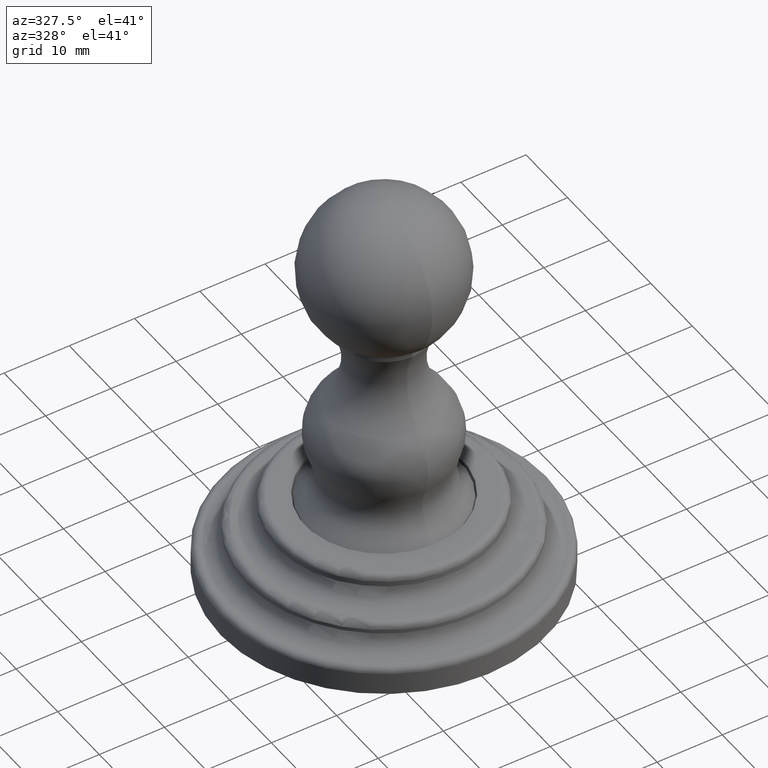
[diagram: clean part render]
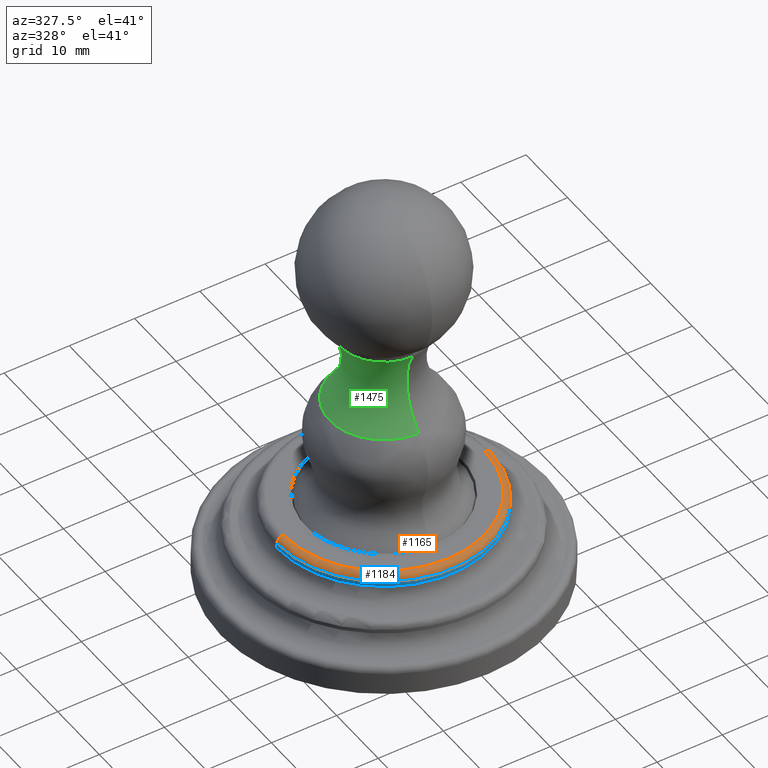
[diagram: same view with three faces highlighted in distinct colors, each labeled with its STEP entity id]
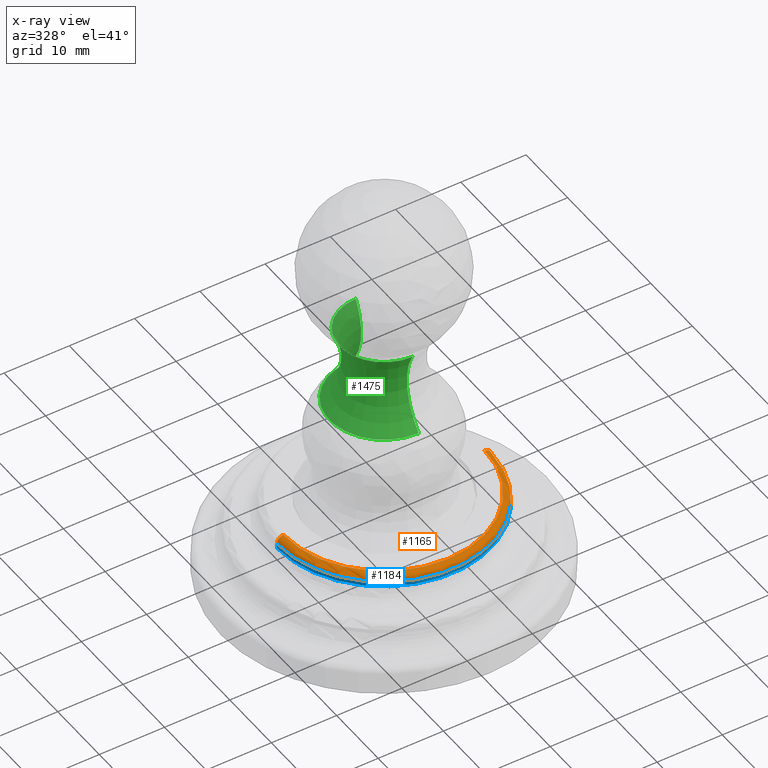
[diagram: x-ray of the same camera — body ghosted, the three highlighted faces saturated]
A machine part, auxiliary view with three faces highlighted in distinct colors.
The next image is the same camera in x-ray (body ghosted, the three faces saturated) — at least one of them is partly hidden behind the body in this view.
Their STEP definitions:

[orange] entity #1165 — the highlighted toroidal blend (fillet) surface has major radius 15.4178 mm and minor (blend) radius 0.9906 mm.
#408=CARTESIAN_POINT('',(6.07E-1,0.E0,4.61E-1));
#409=DIRECTION('',(0.E0,1.E0,0.E0));
#410=DIRECTION('',(0.E0,0.E0,1.E0));
#411=AXIS2_PLACEMENT_3D('',#408,#409,#410);
#416=CARTESIAN_POINT('',(-1.230769033143E-14,0.E0,5.E-1));
#417=DIRECTION('',(0.E0,0.E0,1.E0));
#418=DIRECTION('',(-1.E0,0.E0,0.E0));
#419=AXIS2_PLACEMENT_3D('',#416,#417,#418);
#448=CARTESIAN_POINT('',(-6.07E-1,0.E0,4.61E-1));
#449=DIRECTION('',(0.E0,-1.E0,0.E0));
#450=DIRECTION('',(0.E0,0.E0,1.E0));
#451=AXIS2_PLACEMENT_3D('',#448,#449,#450);
#456=CARTESIAN_POINT('',(-1.230291420891E-14,0.E0,4.61E-1));
#457=DIRECTION('',(0.E0,0.E0,1.E0));
#458=DIRECTION('',(-1.E0,0.E0,0.E0));
#459=AXIS2_PLACEMENT_3D('',#456,#457,#458);
#722=CARTESIAN_POINT('',(-6.07E-1,0.E0,5.E-1));
#723=CARTESIAN_POINT('',(6.07E-1,0.E0,5.E-1));
#724=VERTEX_POINT('',#722);
#725=VERTEX_POINT('',#723);
#726=CARTESIAN_POINT('',(-6.46E-1,0.E0,4.61E-1));
#727=CARTESIAN_POINT('',(6.46E-1,0.E0,4.61E-1));
#728=VERTEX_POINT('',#726);
#729=VERTEX_POINT('',#727);
#1153=CARTESIAN_POINT('',(-1.230291420891E-14,0.E0,4.61E-1));
#1154=DIRECTION('',(0.E0,0.E0,1.E0));
#1155=DIRECTION('',(-9.999772965808E-1,6.738421395420E-3,0.E0));
#1156=AXIS2_PLACEMENT_3D('',#1153,#1154,#1155);
#1157=TOROIDAL_SURFACE('',#1156,6.07E-1,3.9E-2);
#1158=ORIENTED_EDGE('',*,*,#1134,.T.);
#1159=ORIENTED_EDGE('',*,*,#1117,.T.);
#1161=ORIENTED_EDGE('',*,*,#1160,.F.);
#1162=ORIENTED_EDGE('',*,*,#1114,.F.);
#1163=EDGE_LOOP('',(#1158,#1159,#1161,#1162));
#1164=FACE_OUTER_BOUND('',#1163,.F.);
#412=CIRCLE('',#411,3.9E-2);
#420=CIRCLE('',#419,6.07E-1);
#452=CIRCLE('',#451,3.9E-2);
#460=CIRCLE('',#459,6.46E-1);
#1114=EDGE_CURVE('',#724,#728,#452,.T.);
#1117=EDGE_CURVE('',#725,#729,#412,.T.);
#1134=EDGE_CURVE('',#724,#725,#420,.T.);
#1160=EDGE_CURVE('',#728,#729,#460,.T.);
#1165=ADVANCED_FACE('',(#1164),#1157,.T.);

[blue] entity #1184 — the highlighted cylindrical surface (partial cylindrical patch) has radius 16.4084 mm, axis along (0, 0, 1).
#386=DIRECTION('',(0.E0,3.514269968220E-12,1.E0));
#387=VECTOR('',#386,3.1E-2);
#388=CARTESIAN_POINT('',(-6.46E-1,0.E0,4.3E-1));
#389=LINE('',#388,#387);
#401=DIRECTION('',(0.E0,-3.513608926658E-12,1.E0));
#402=VECTOR('',#401,3.1E-2);
#403=CARTESIAN_POINT('',(6.46E-1,0.E0,4.3E-1));
#404=LINE('',#403,#402);
#456=CARTESIAN_POINT('',(-1.230291420891E-14,0.E0,4.61E-1));
#457=DIRECTION('',(0.E0,0.E0,1.E0));
#458=DIRECTION('',(-1.E0,0.E0,0.E0));
#459=AXIS2_PLACEMENT_3D('',#456,#457,#458);
#464=CARTESIAN_POINT('',(-1.229911780384E-14,0.E0,4.3E-1));
#465=DIRECTION('',(0.E0,0.E0,1.E0));
#466=DIRECTION('',(-1.E0,0.E0,0.E0));
#467=AXIS2_PLACEMENT_3D('',#464,#465,#466);
#695=CARTESIAN_POINT('',(-6.46E-1,0.E0,4.3E-1));
#697=VERTEX_POINT('',#695);
#703=CARTESIAN_POINT('',(6.46E-1,0.E0,4.3E-1));
#705=VERTEX_POINT('',#703);
#726=CARTESIAN_POINT('',(-6.46E-1,0.E0,4.61E-1));
#727=CARTESIAN_POINT('',(6.46E-1,0.E0,4.61E-1));
#728=VERTEX_POINT('',#726);
#729=VERTEX_POINT('',#727);
#1173=CARTESIAN_POINT('',(-1.224339637448E-14,0.E0,-2.5E-2));
#1174=DIRECTION('',(0.E0,0.E0,1.E0));
#1175=DIRECTION('',(-1.E0,0.E0,0.E0));
#1176=AXIS2_PLACEMENT_3D('',#1173,#1174,#1175);
#1177=CYLINDRICAL_SURFACE('',#1176,6.46E-1);
#1178=ORIENTED_EDGE('',*,*,#1160,.T.);
#1179=ORIENTED_EDGE('',*,*,#1095,.F.);
#1180=ORIENTED_EDGE('',*,*,#1050,.F.);
#1181=ORIENTED_EDGE('',*,*,#1092,.T.);
#1182=EDGE_LOOP('',(#1178,#1179,#1180,#1181));
#1183=FACE_OUTER_BOUND('',#1182,.F.);
#460=CIRCLE('',#459,6.46E-1);
#468=CIRCLE('',#467,6.46E-1);
#1050=EDGE_CURVE('',#697,#705,#468,.T.);
#1092=EDGE_CURVE('',#697,#728,#389,.T.);
#1095=EDGE_CURVE('',#705,#729,#404,.T.);
#1160=EDGE_CURVE('',#728,#729,#460,.T.);
#1184=ADVANCED_FACE('',(#1183),#1177,.T.);

[green] entity #1475 — the highlighted toroidal blend (fillet) surface has major radius 15.4873 mm and minor (blend) radius 10 mm.
#596=CARTESIAN_POINT('',(0.E0,6.097361008040E-1,1.418644351080E0));
#597=DIRECTION('',(-1.E0,0.E0,0.E0));
#598=DIRECTION('',(0.E0,-7.133801856540E-1,-7.007772190334E-1));
#599=AXIS2_PLACEMENT_3D('',#596,#597,#598);
#604=CARTESIAN_POINT('',(0.E0,-6.097361008040E-1,1.418644351080E0));
#605=DIRECTION('',(1.E0,0.E0,0.E0));
#606=DIRECTION('',(0.E0,7.133801856540E-1,-7.007772190334E-1));
#607=AXIS2_PLACEMENT_3D('',#604,#605,#606);
#612=CARTESIAN_POINT('',(0.E0,0.E0,1.142747808153E0));
#613=DIRECTION('',(0.E0,0.E0,1.E0));
#614=DIRECTION('',(0.E0,1.E0,0.E0));
#615=AXIS2_PLACEMENT_3D('',#612,#613,#614);
#650=CARTESIAN_POINT('',(0.E0,0.E0,1.612582374098E0));
#651=DIRECTION('',(0.E0,0.E0,1.E0));
#652=DIRECTION('',(0.E0,1.E0,0.E0));
#653=AXIS2_PLACEMENT_3D('',#650,#651,#652);
#746=CARTESIAN_POINT('',(0.E0,3.288777599953E-1,1.142747808153E0));
#747=VERTEX_POINT('',#746);
#748=CARTESIAN_POINT('',(0.E0,2.671162630414E-1,1.612582374098E0));
#749=VERTEX_POINT('',#748);
#758=CARTESIAN_POINT('',(0.E0,-3.288777599953E-1,1.142747808153E0));
#759=VERTEX_POINT('',#758);
#760=CARTESIAN_POINT('',(0.E0,-2.671162630414E-1,1.612582374098E0));
#761=VERTEX_POINT('',#760);
#1461=CARTESIAN_POINT('',(0.E0,0.E0,1.418644351080E0));
#1462=DIRECTION('',(0.E0,0.E0,-1.E0));
#1463=DIRECTION('',(0.E0,-1.E0,0.E0));
#1464=AXIS2_PLACEMENT_3D('',#1461,#1462,#1463);
#1465=TOROIDAL_SURFACE('',#1464,6.097361008040E-1,3.937007874016E-1);
#1467=ORIENTED_EDGE('',*,*,#1466,.T.);
#1469=ORIENTED_EDGE('',*,*,#1468,.T.);
#1471=ORIENTED_EDGE('',*,*,#1470,.F.);
#1472=ORIENTED_EDGE('',*,*,#1442,.F.);
#1473=EDGE_LOOP('',(#1467,#1469,#1471,#1472));
#1474=FACE_OUTER_BOUND('',#1473,.F.);
#600=CIRCLE('',#599,3.937007874016E-1);
#608=CIRCLE('',#607,3.937007874016E-1);
#616=CIRCLE('',#615,3.288777599953E-1);
#654=CIRCLE('',#653,2.671162630414E-1);
#1442=EDGE_CURVE('',#747,#759,#616,.T.);
#1466=EDGE_CURVE('',#747,#749,#600,.T.);
#1468=EDGE_CURVE('',#749,#761,#654,.T.);
#1470=EDGE_CURVE('',#759,#761,#608,.T.);
#1475=ADVANCED_FACE('',(#1474),#1465,.F.);